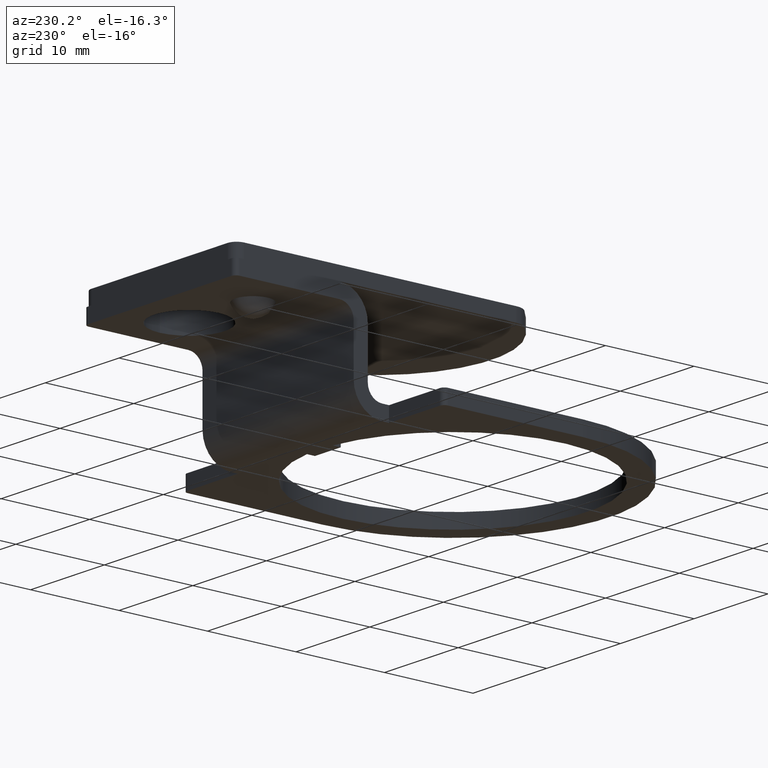
[diagram: clean part render]
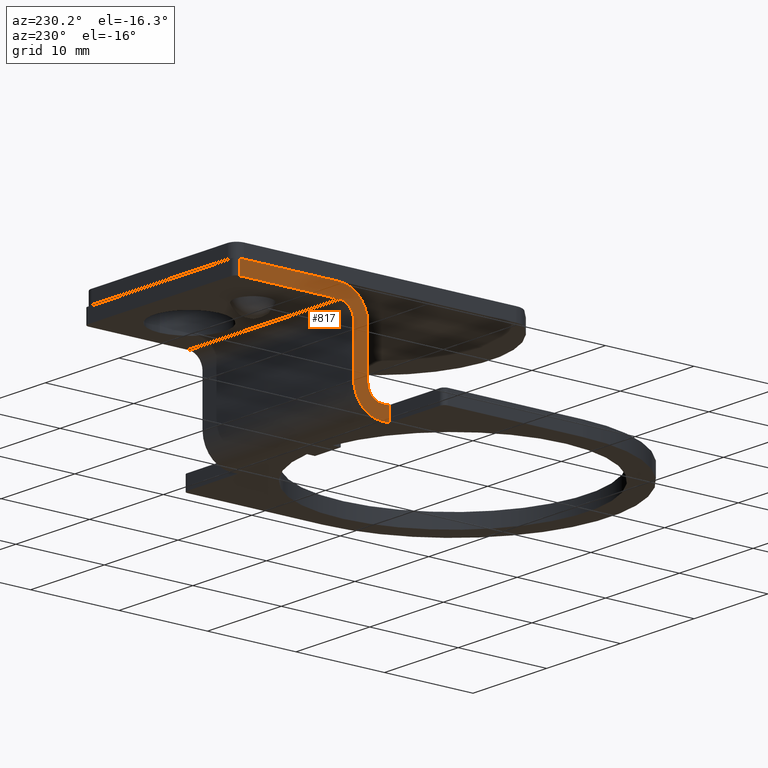
[diagram: same view with one face highlighted and labeled with its STEP entity id]
A machine part, auxiliary view. The second image highlights one B-rep face of the part: STEP entity #817.
In plain terms, the highlighted planar face has unit normal (1, 0, 0).
Its self-contained STEP definition (entity closure, byte-faithful):
#112=CARTESIAN_POINT('',(-7.094414371630422,13.958010052756922,11.750000000000004));
#113=VERTEX_POINT('',#112);
#131=CARTESIAN_POINT('',(-7.094414371630422,13.958010052756922,10.150000000000002));
#132=VERTEX_POINT('',#131);
#140=CARTESIAN_POINT('',(-7.094414371630422,13.958010052756922,10.150000000000002));
#141=DIRECTION('',(0.0,0.0,1.0));
#142=VECTOR('',#141,1.600000000000001);
#143=LINE('',#140,#142);
#144=EDGE_CURVE('',#132,#113,#143,.T.);
#186=CARTESIAN_POINT('',(-7.094414371630422,2.658010052756923,11.750000000000004));
#187=VERTEX_POINT('',#186);
#188=CARTESIAN_POINT('',(-7.094414371630422,13.958010052756922,11.750000000000004));
#189=DIRECTION('',(0.0,-1.0,0.0));
#190=VECTOR('',#189,11.299999999999999);
#191=LINE('',#188,#190);
#192=EDGE_CURVE('',#113,#187,#191,.T.);
#464=CARTESIAN_POINT('',(-7.094414371630422,-2.941989947243080,8.326673E-016));
#465=VERTEX_POINT('',#464);
#472=CARTESIAN_POINT('',(-7.094414371630422,-2.141989947243079,8.326673E-016));
#473=VERTEX_POINT('',#472);
#474=CARTESIAN_POINT('',(-7.094414371630422,-2.941989947243080,8.326673E-016));
#475=DIRECTION('',(0.0,1.0,0.0));
#476=VECTOR('',#475,0.800000000000000);
#477=LINE('',#474,#476);
#478=EDGE_CURVE('',#465,#473,#477,.T.);
#564=CARTESIAN_POINT('',(-7.094414371630422,-2.941989947243080,1.600000000000001));
#565=VERTEX_POINT('',#564);
#572=CARTESIAN_POINT('',(-7.094414371630422,-2.941989947243080,8.326673E-016));
#573=DIRECTION('',(0.0,0.0,1.0));
#574=VECTOR('',#573,1.600000000000000);
#575=LINE('',#572,#574);
#576=EDGE_CURVE('',#465,#565,#575,.T.);
#590=CARTESIAN_POINT('',(-7.094414371630422,-2.141989947243079,1.600000000000000));
#591=VERTEX_POINT('',#590);
#598=CARTESIAN_POINT('',(-7.094414371630422,-2.141989947243079,1.600000000000000));
#599=DIRECTION('',(0.0,-1.0,0.0));
#600=VECTOR('',#599,0.800000000000000);
#601=LINE('',#598,#600);
#602=EDGE_CURVE('',#591,#565,#601,.T.);
#733=CARTESIAN_POINT('',(-7.094414371630422,2.658010052756923,10.150000000000002));
#734=VERTEX_POINT('',#733);
#741=CARTESIAN_POINT('',(-7.094414371630422,2.658010052756923,10.150000000000002));
#742=DIRECTION('',(0.0,1.0,0.0));
#743=VECTOR('',#742,11.299999999999999);
#744=LINE('',#741,#743);
#745=EDGE_CURVE('',#734,#132,#744,.T.);
#756=CARTESIAN_POINT('',(-7.094414371630421,6.958010052756921,10.950000000000005));
#757=DIRECTION('',(1.0,0.0,0.0));
#758=DIRECTION('',(0.0,0.0,-1.0));
#759=AXIS2_PLACEMENT_3D('',#756,#757,#758);
#760=PLANE('',#759);
#761=ORIENTED_EDGE('',*,*,#144,.F.);
#762=ORIENTED_EDGE('',*,*,#745,.F.);
#763=CARTESIAN_POINT('',(-7.094414371630422,1.058010052756922,8.550000000000001));
#764=VERTEX_POINT('',#763);
#765=CARTESIAN_POINT('',(-7.094414371630422,2.658010052756922,8.550000000000003));
#766=DIRECTION('',(-1.0,0.0,0.0));
#767=DIRECTION('',(0.0,-1.0,0.0));
#768=AXIS2_PLACEMENT_3D('',#765,#766,#767);
#769=CIRCLE('',#768,1.600000000000000);
#770=EDGE_CURVE('',#764,#734,#769,.T.);
#771=ORIENTED_EDGE('',*,*,#770,.F.);
#772=CARTESIAN_POINT('',(-7.094414371630422,1.058010052756921,3.199999999999983));
#773=VERTEX_POINT('',#772);
#774=CARTESIAN_POINT('',(-7.094414371630422,1.058010052756921,3.199999999999983));
#775=DIRECTION('',(0.0,0.0,1.0));
#776=VECTOR('',#775,5.350000000000017);
#777=LINE('',#774,#776);
#778=EDGE_CURVE('',#773,#764,#777,.T.);
#779=ORIENTED_EDGE('',*,*,#778,.F.);
#780=CARTESIAN_POINT('',(-7.094414371630422,-2.141989947243079,3.200000000000001));
#781=DIRECTION('',(1.0,0.0,0.0));
#782=DIRECTION('',(0.0,0.0,-1.0));
#783=AXIS2_PLACEMENT_3D('',#780,#781,#782);
#784=CIRCLE('',#783,3.199999999999999);
#785=EDGE_CURVE('',#473,#773,#784,.T.);
#786=ORIENTED_EDGE('',*,*,#785,.F.);
#787=ORIENTED_EDGE('',*,*,#478,.F.);
#788=ORIENTED_EDGE('',*,*,#576,.T.);
#789=ORIENTED_EDGE('',*,*,#602,.F.);
#790=CARTESIAN_POINT('',(-7.094414371630422,-0.541989947243079,3.199999999999983));
#791=VERTEX_POINT('',#790);
#792=CARTESIAN_POINT('',(-7.094414371630422,-2.141989947243079,3.200000000000001));
#793=DIRECTION('',(1.0,0.0,0.0));
#794=DIRECTION('',(0.0,0.0,-1.0));
#795=AXIS2_PLACEMENT_3D('',#792,#793,#794);
#796=CIRCLE('',#795,1.599999999999999);
#797=EDGE_CURVE('',#591,#791,#796,.T.);
#798=ORIENTED_EDGE('',*,*,#797,.T.);
#799=CARTESIAN_POINT('',(-7.094414371630422,-0.541989947243078,8.550000000000001));
#800=VERTEX_POINT('',#799);
#801=CARTESIAN_POINT('',(-7.094414371630422,-0.541989947243078,8.550000000000001));
#802=DIRECTION('',(0.0,0.0,-1.0));
#803=VECTOR('',#802,5.350000000000017);
#804=LINE('',#801,#803);
#805=EDGE_CURVE('',#800,#791,#804,.T.);
#806=ORIENTED_EDGE('',*,*,#805,.F.);
#807=CARTESIAN_POINT('',(-7.094414371630422,2.658010052756922,8.550000000000003));
#808=DIRECTION('',(-1.0,0.0,0.0));
#809=DIRECTION('',(0.0,-1.0,0.0));
#810=AXIS2_PLACEMENT_3D('',#807,#808,#809);
#811=CIRCLE('',#810,3.200000000000001);
#812=EDGE_CURVE('',#800,#187,#811,.T.);
#813=ORIENTED_EDGE('',*,*,#812,.T.);
#814=ORIENTED_EDGE('',*,*,#192,.F.);
#815=EDGE_LOOP('',(#761,#762,#771,#779,#786,#787,#788,#789,#798,#806,#813,#814));
#816=FACE_OUTER_BOUND('',#815,.T.);
#817=ADVANCED_FACE('',(#816),#760,.F.);